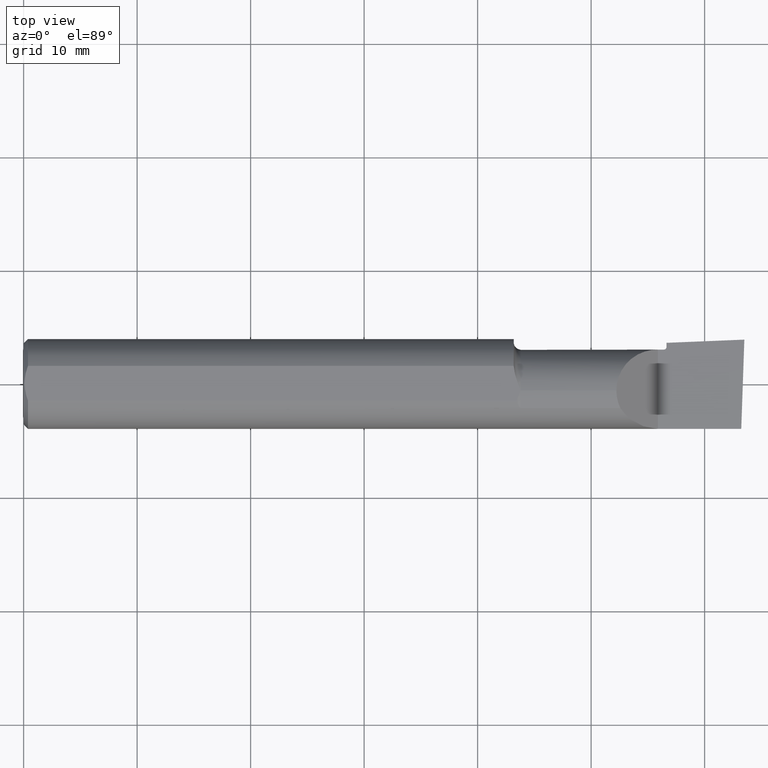
[diagram: clean part render]
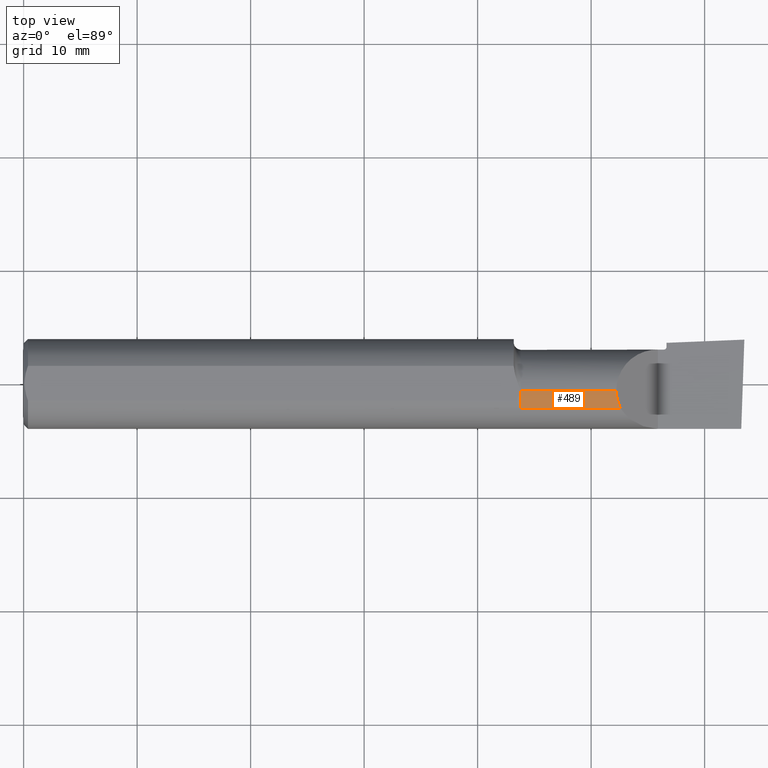
[diagram: same view with one face highlighted and labeled with its STEP entity id]
A machine part, top view. The second image highlights one B-rep face of the part: STEP entity #489.
In plain terms, the highlighted cylindrical surface (partial cylindrical patch) has radius 3.6551 mm, axis along (-1, -0, -0).
Its self-contained STEP definition (entity closure, byte-faithful):
#18 = EDGE_CURVE ( 'NONE', #326, #444, #341, .T. ) ;
#44 = CARTESIAN_POINT ( 'NONE',  ( 1.724999999999999867, -0.08569999999999906859, 0.1304711462354805618 ) ) ;
#46 = VERTEX_POINT ( 'NONE', #44 ) ;
#83 = CIRCLE ( 'NONE', #584, 0.1439000000000001389 ) ;
#105 = LINE ( 'NONE', #549, #565 ) ;
#135 = CARTESIAN_POINT ( 'NONE',  ( 1.724999999999999867, -0.02500000000000000486, 0.000000000000000000 ) ) ;
#139 = DIRECTION ( 'NONE',  ( -1.000000000000000000, -0.000000000000000000, -0.000000000000000000 ) ) ;
#156 = VERTEX_POINT ( 'NONE', #605 ) ;
#163 = EDGE_CURVE ( 'NONE', #46, #326, #105, .T. ) ;
#166 = LINE ( 'NONE', #387, #181 ) ;
#181 = VECTOR ( 'NONE', #619, 39.37007874015748143 ) ;
#184 = DIRECTION ( 'NONE',  ( 0.000000000000000000, 0.000000000000000000, 1.000000000000000000 ) ) ;
#190 = EDGE_LOOP ( 'NONE', ( #196, #587, #322, #477 ) ) ;
#196 = ORIENTED_EDGE ( 'NONE', *, *, #18, .T. ) ;
#259 = CARTESIAN_POINT ( 'NONE',  ( 2.060647864559970177, -0.06661082633899828576, 0.1393521354400304446 ) ) ;
#263 = DIRECTION ( 'NONE',  ( 0.000000000000000000, 0.000000000000000000, 1.000000000000000000 ) ) ;
#308 = CARTESIAN_POINT ( 'NONE',  ( 2.056100000000000705, -0.02500000000000000486, 0.1439000000000001389 ) ) ;
#322 = ORIENTED_EDGE ( 'NONE', *, *, #346, .F. ) ;
#326 = VERTEX_POINT ( 'NONE', #328 ) ;
#328 = CARTESIAN_POINT ( 'NONE',  ( 2.069528853764516008, -0.08569999999999164397, 0.1304711462354848361 ) ) ;
#341 =( BOUNDED_CURVE ( )  B_SPLINE_CURVE ( 3, ( #644, #259, #664, #308 ),
 .UNSPECIFIED., .F., .F. ) 
 B_SPLINE_CURVE_WITH_KNOTS ( ( 4, 4 ),
 ( 5.847732816089093788, 6.283185307179586232 ),
 .UNSPECIFIED. ) 
 CURVE ( )  GEOMETRIC_REPRESENTATION_ITEM ( )  RATIONAL_B_SPLINE_CURVE ( ( 1.000000000000000000, 0.9842607512044790896, 0.9842607512044790896, 1.000000000000000000 ) ) 
 REPRESENTATION_ITEM ( '' )  );
#346 = EDGE_CURVE ( 'NONE', #46, #156, #83, .T. ) ;
#362 = CARTESIAN_POINT ( 'NONE',  ( 0.000000000000000000, -0.02500000000000000486, 0.000000000000000000 ) ) ;
#363 = DIRECTION ( 'NONE',  ( 1.000000000000000000, 0.000000000000000000, 0.000000000000000000 ) ) ;
#387 = CARTESIAN_POINT ( 'NONE',  ( 0.000000000000000000, -0.02500000000000000486, 0.1439000000000001389 ) ) ;
#444 = VERTEX_POINT ( 'NONE', #595 ) ;
#477 = ORIENTED_EDGE ( 'NONE', *, *, #163, .T. ) ;
#479 = FACE_OUTER_BOUND ( 'NONE', #190, .T. ) ;
#489 = ADVANCED_FACE ( 'NONE', ( #479 ), #657, .T. ) ;
#549 = CARTESIAN_POINT ( 'NONE',  ( 1.972499999999999698, -0.08569999999999904083, 0.1304711462354805618 ) ) ;
#565 = VECTOR ( 'NONE', #363, 39.37007874015748143 ) ;
#584 = AXIS2_PLACEMENT_3D ( 'NONE', #135, #139, #184 ) ;
#587 = ORIENTED_EDGE ( 'NONE', *, *, #636, .T. ) ;
#592 = DIRECTION ( 'NONE',  ( -1.000000000000000000, -0.000000000000000000, -0.000000000000000000 ) ) ;
#595 = CARTESIAN_POINT ( 'NONE',  ( 2.056100000000000705, -0.02500000000000000486, 0.1439000000000001389 ) ) ;
#605 = CARTESIAN_POINT ( 'NONE',  ( 1.724999999999999867, -0.02500000000000000486, 0.1439000000000001389 ) ) ;
#619 = DIRECTION ( 'NONE',  ( -1.000000000000000000, -0.000000000000000000, -0.000000000000000000 ) ) ;
#636 = EDGE_CURVE ( 'NONE', #444, #156, #166, .T. ) ;
#644 = CARTESIAN_POINT ( 'NONE',  ( 2.069528853764516008, -0.08569999999999164397, 0.1304711462354848361 ) ) ;
#657 = CYLINDRICAL_SURFACE ( 'NONE', #721, 0.1439000000000001389 ) ;
#664 = CARTESIAN_POINT ( 'NONE',  ( 2.056100000000000705, -0.04605394310600322699, 0.1439000000000001667 ) ) ;
#721 = AXIS2_PLACEMENT_3D ( 'NONE', #362, #592, #263 ) ;